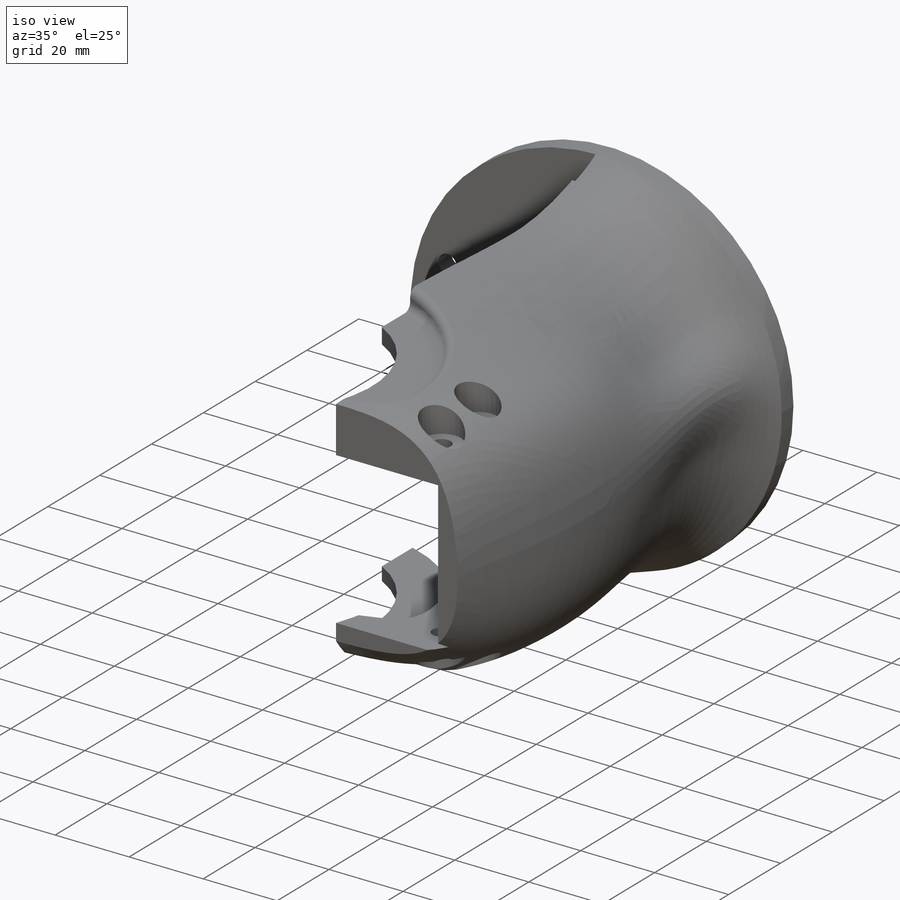
[diagram: iso view]
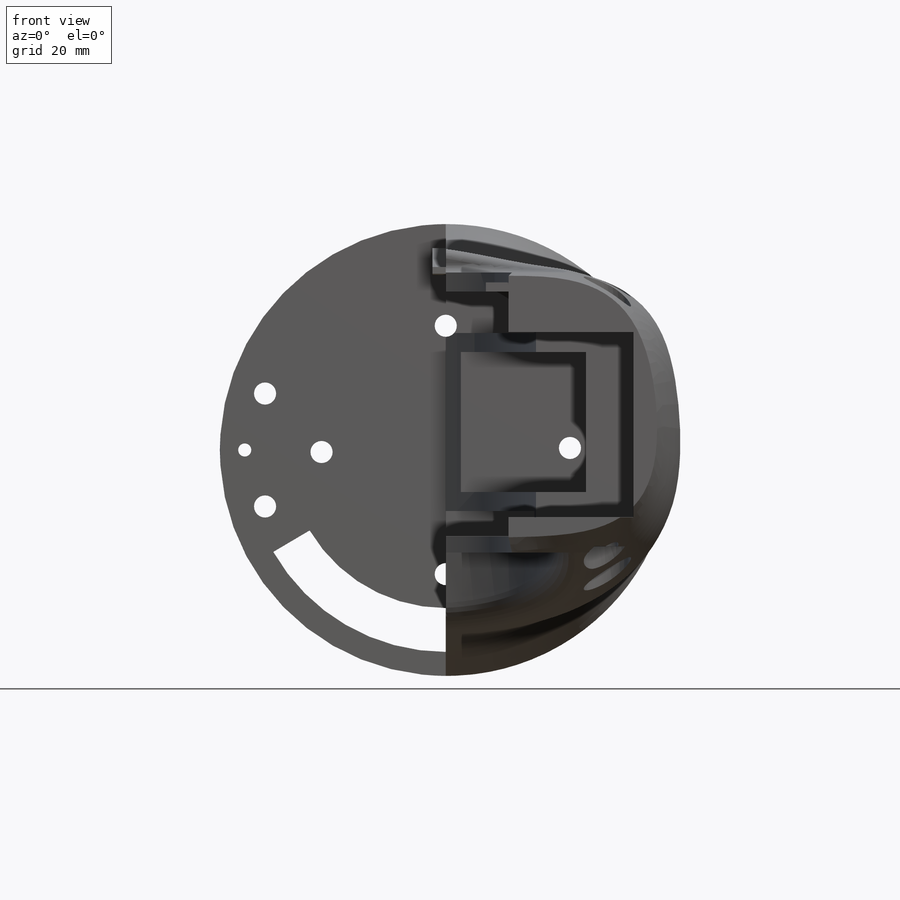
[diagram: front view]
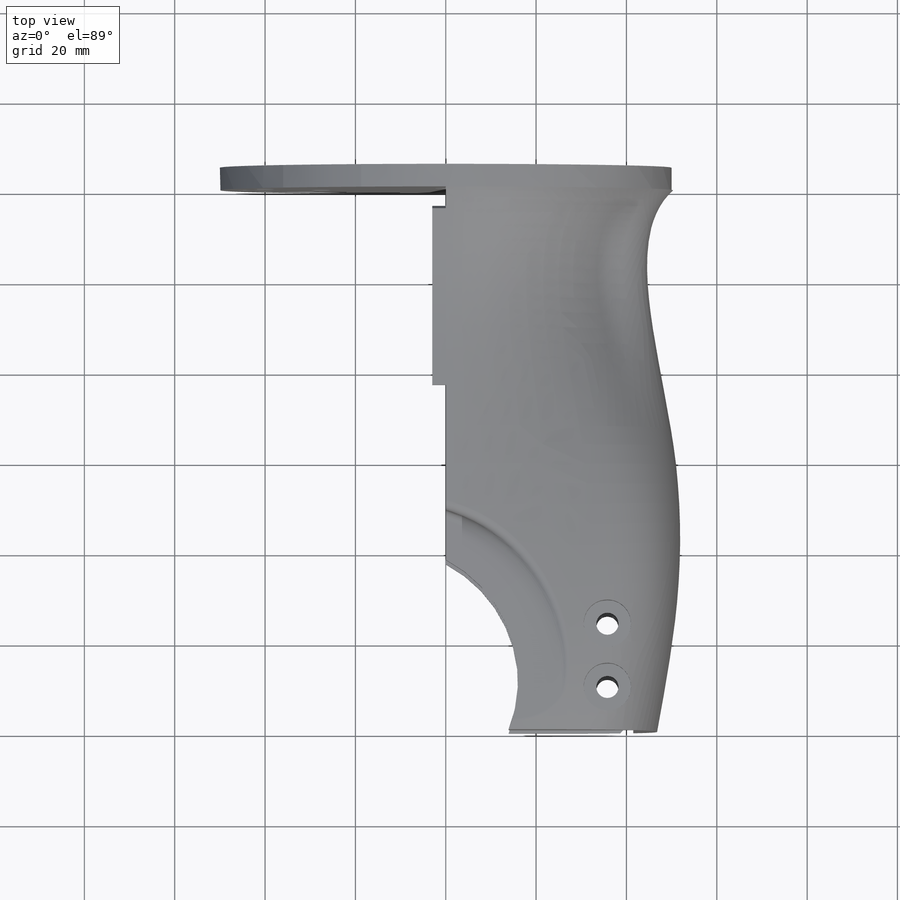
[diagram: top view]
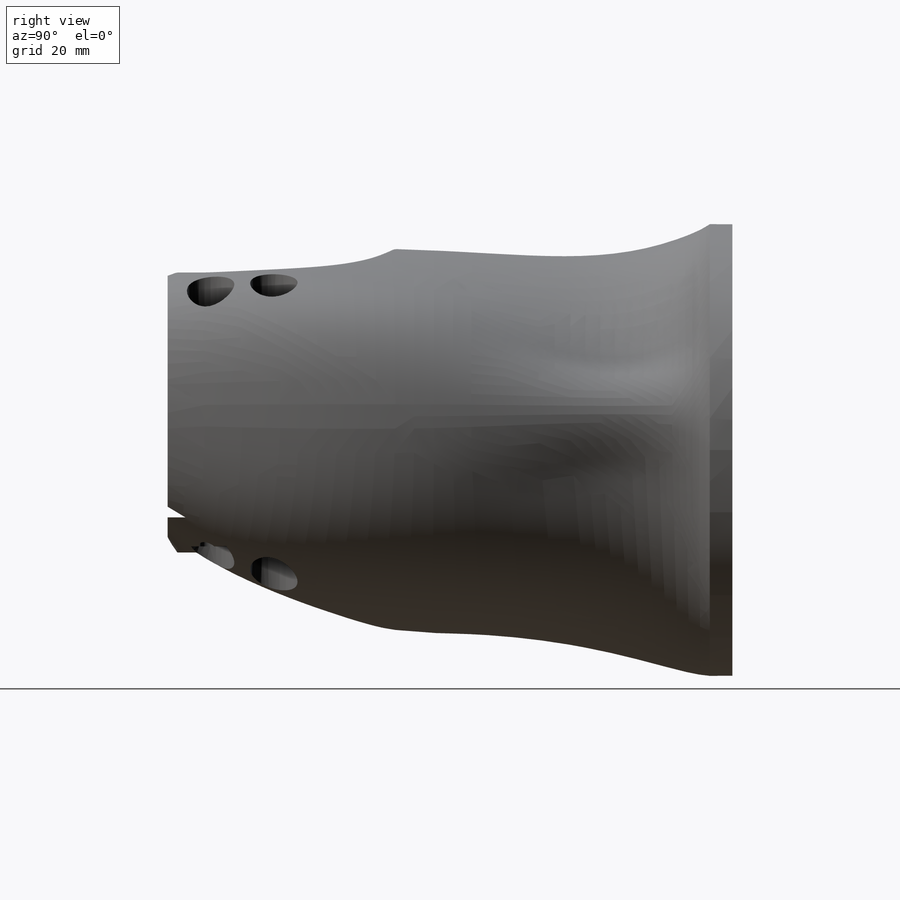
[diagram: right view]
SOLIDWORKS PART (.sldprt)
format: sldprt  version: not decoded by parser v0  size: 3,144,704 bytes
history: native  units: mm
features: sketch x17, cut_extrude x13, extrude x4, plane x3, material x1, shell x1, boolean_combine x1, fillet x1, pattern_circular x1 (+14 scaffold rows collapsed)
feature tree (56):
  scaffold x14  (default folders/planes/origin — collapsed)
  material  "ABS"
  sketch  "Sketch3"  dims[D1=31.0mm]
  cut_extrude  "Extrude4"  Depth=31mm
  sketch  "Sketch5"  dims[D1=41.0mm D2=41.5mm]
  cut_extrude  "Extrude5"  Depth=65mm
  shell  "Shell7"  Thickness=4.2mm
  plane  "Plane2"  Offset=50mm
  plane  "Plane4"  Offset=91mm
  sketch  "Sketch10"
  extrude  "Extrude8"  Depth=11mm
  sketch  "Sketch12"
  cut_extrude  "Extrude9"  Depth=4mm
  boolean_combine  "Combine1"
  sketch  "Sketch15"
  extrude  "Extrude12"  Depth=27.147213mm
  sketch  "Sketch7"  dims[D1=4.9mm]
  cut_extrude  "Extrude6"  Depth=86mm
  sketch  "Sketch8"
  cut_extrude  "Extrude7"  Depth=49.417656mm
  plane  "Plane5"  Offset=41mm
  sketch  "Sketch13"  dims[D1=10.5mm D2=10.5mm]
  cut_extrude  "Extrude10"  Depth=20.376904mm
  sketch  "Sketch14"  dims[D1=10.5mm]
  cut_extrude  "Extrude11"  Depth=5mm
  sketch  "Sketch16"  dims[D1=60.0mm D2=109.0mm D3=14.0mm]
  cut_extrude  "Cut-Extrude1"  Depth=115.622316mm
  sketch  "Sketch17"  dims[D1=0.0mm D2=1.5mm]
  extrude  "Extrude13"  Depth=3mm
  sketch  "Sketch18"
  cut_extrude  "Extrude14"  Depth=2mm
  sketch  "Sketch19"  dims[D1=100.0mm]
  extrude  "Extrude15"  Depth=5mm
  sketch  "Sketch20"  dims[D1=4.9mm D2=25.0mm D3=40.0mm]
  cut_extrude  "Extrude16"  Depth=19mm
  sketch  "Sketch21"  dims[D2=4.9mm D1=55.0mm]
  cut_extrude  "Extrude17"  Depth=18mm
  sketch  "Sketch22"  dims[D1=70.0mm D2=88.0mm]
  cut_extrude  "Extrude18"  Depth=10mm
  fillet  "Fillet1"  Radius=6mm
  sketch  "Sketch23"  dims[c1.D1=~80.294094mm c1.D2=2.9mm c2.D1=44.5mm c2.D2=~27.816865mm]
  cut_extrude  "Extrude19"  Depth=8mm
  pattern_circular  "CirPattern1"  Count=3 Angle=360deg
decode coverage: 32 of 38 modeling features carry decoded parameters
note: ~ marks probable driven/reference dimensions
note: suppression state not decoded; provenance and decode notes live in map.json
